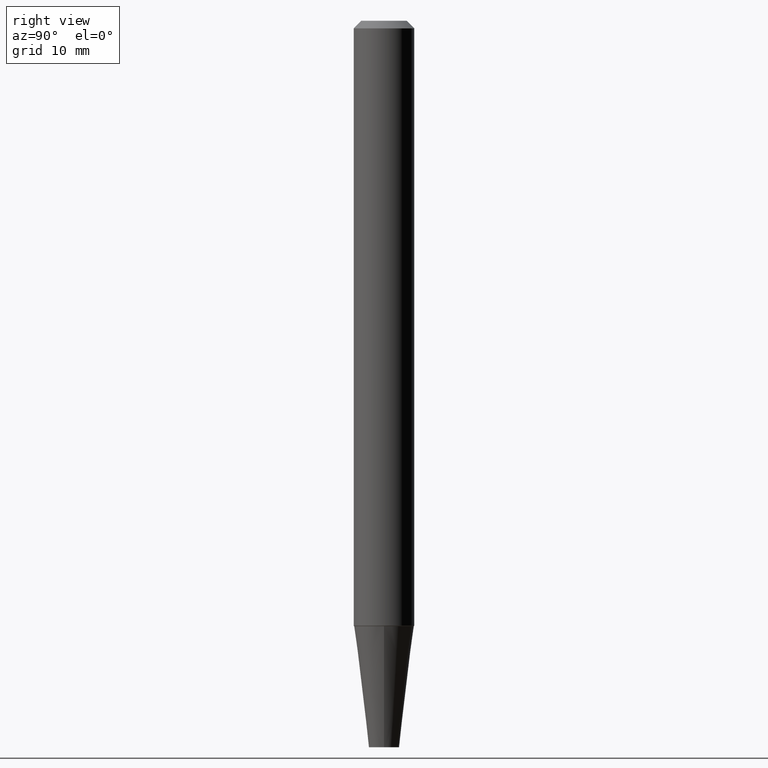
[diagram: clean part render]
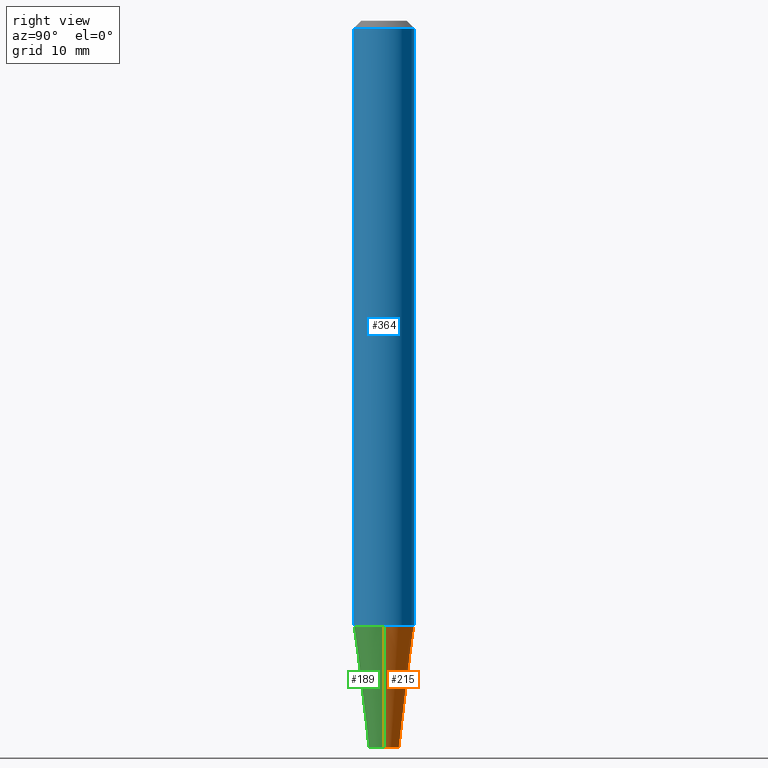
[diagram: same view with three faces highlighted in distinct colors, each labeled with its STEP entity id]
A machine part, right view with three faces highlighted in distinct colors.
Their STEP definitions:

[orange] entity #215 — the highlighted conical surface has half-angle 7 deg.
#7 = ORIENTED_EDGE ( 'NONE', *, *, #116, .F. ) ;
#18 = ORIENTED_EDGE ( 'NONE', *, *, #213, .T. ) ;
#28 = ORIENTED_EDGE ( 'NONE', *, *, #350, .F. ) ;
#53 = DIRECTION ( 'NONE',  ( 1.000000000000000000, -6.982962677686273810E-15, 0.000000000000000000 ) ) ;
#55 = VERTEX_POINT ( 'NONE', #270 ) ;
#75 = CARTESIAN_POINT ( 'NONE',  ( 6.113672015462842613E-29, -8.728703347107864943E-15, -2.500000000000000000 ) ) ;
#76 = LINE ( 'NONE', #191, #179 ) ;
#78 = CARTESIAN_POINT ( 'NONE',  ( 7.336406418555409790E-29, -1.047444401652943635E-14, -3.000000000000000444 ) ) ;
#85 = DIRECTION ( 'NONE',  ( -2.445468806185136597E-29, 3.491481338843145583E-15, 1.000000000000000000 ) ) ;
#88 = AXIS2_PLACEMENT_3D ( 'NONE', #75, #136, #402 ) ;
#116 = EDGE_CURVE ( 'NONE', #55, #322, #139, .T. ) ;
#136 = DIRECTION ( 'NONE',  ( -2.445468806185136597E-29, 3.491481338843145583E-15, 1.000000000000000000 ) ) ;
#139 = CIRCLE ( 'NONE', #88, 0.1238922804514488302 ) ;
#146 = FACE_OUTER_BOUND ( 'NONE', #263, .T. ) ;
#148 = LINE ( 'NONE', #207, #252 ) ;
#152 = AXIS2_PLACEMENT_3D ( 'NONE', #329, #195, #53 ) ;
#159 = DIRECTION ( 'NONE',  ( 1.000000000000000000, -6.982962677686273810E-15, 0.000000000000000000 ) ) ;
#160 = CARTESIAN_POINT ( 'NONE',  ( -0.06250000000000018041, -8.939375277435968342E-15, -3.000000000000000444 ) ) ;
#172 = AXIS2_PLACEMENT_3D ( 'NONE', #78, #85, #159 ) ;
#179 = VECTOR ( 'NONE', #325, 39.37007874015748854 ) ;
#191 = CARTESIAN_POINT ( 'NONE',  ( 0.06250000000000018041, -1.091087918388483118E-14, -3.000000000000000444 ) ) ;
#195 = DIRECTION ( 'NONE',  ( -2.445468806185136597E-29, 3.491481338843145583E-15, 1.000000000000000000 ) ) ;
#207 = CARTESIAN_POINT ( 'NONE',  ( -0.06250000000000018041, -1.003035480667937216E-14, -3.000000000000000444 ) ) ;
#213 = EDGE_CURVE ( 'NONE', #223, #354, #356, .T. ) ;
#215 = ADVANCED_FACE ( 'NONE', ( #146 ), #394, .T. ) ;
#223 = VERTEX_POINT ( 'NONE', #304 ) ;
#252 = VECTOR ( 'NONE', #343, 39.37007874015748854 ) ;
#263 = EDGE_LOOP ( 'NONE', ( #18, #315, #7, #28 ) ) ;
#270 = CARTESIAN_POINT ( 'NONE',  ( 0.1238922804514488302, -9.593838517553770713E-15, -2.500000000000000000 ) ) ;
#284 = EDGE_CURVE ( 'NONE', #354, #322, #148, .T. ) ;
#290 = CARTESIAN_POINT ( 'NONE',  ( -0.1238922804514488302, -7.848395748192562947E-15, -2.500000000000000000 ) ) ;
#304 = CARTESIAN_POINT ( 'NONE',  ( 0.06250000000000018041, -1.091087918388483118E-14, -3.000000000000000444 ) ) ;
#315 = ORIENTED_EDGE ( 'NONE', *, *, #284, .T. ) ;
#322 = VERTEX_POINT ( 'NONE', #290 ) ;
#325 = DIRECTION ( 'NONE',  ( 0.1218693434051403013, 2.614447289844031754E-15, 0.9925461516413229823 ) ) ;
#329 = CARTESIAN_POINT ( 'NONE',  ( 7.336406418555409790E-29, -1.047444401652943635E-14, -3.000000000000000444 ) ) ;
#343 = DIRECTION ( 'NONE',  ( -0.1218693434051403013, 4.331390133080013075E-15, 0.9925461516413229823 ) ) ;
#350 = EDGE_CURVE ( 'NONE', #223, #55, #76, .T. ) ;
#354 = VERTEX_POINT ( 'NONE', #160 ) ;
#356 = CIRCLE ( 'NONE', #172, 0.06250000000000018041 ) ;
#394 = CONICAL_SURFACE ( 'NONE', #152, 0.06250000000000018041, 0.1221730476395958415 ) ;
#402 = DIRECTION ( 'NONE',  ( 1.000000000000000000, -6.982962677686261977E-15, 0.000000000000000000 ) ) ;

[blue] entity #364 — the highlighted cylindrical surface (edge-blend (fillet) strip) has radius 3.175 mm, axis along (-0, 0, 1).
#21 = DIRECTION ( 'NONE',  ( -2.634027352174644094E-29, 3.221454768900221643E-15, 1.000000000000000000 ) ) ;
#22 = FACE_OUTER_BOUND ( 'NONE', #221, .T. ) ;
#27 = CYLINDRICAL_SURFACE ( 'NONE', #100, 0.1250000000000001388 ) ;
#36 = VECTOR ( 'NONE', #409, 39.37007874015748143 ) ;
#50 = CARTESIAN_POINT ( 'NONE',  ( -8.575622497214472631E-16, -0.1250000000000010825, -0.03124999999999965306 ) ) ;
#60 = CARTESIAN_POINT ( 'NONE',  ( 8.728703347107841277E-16, 0.1249999999999999167, -0.03125000000000045797 ) ) ;
#81 = ORIENTED_EDGE ( 'NONE', *, *, #275, .T. ) ;
#83 = DIRECTION ( 'NONE',  ( -2.634027352174644094E-29, 3.221454768900221643E-15, 1.000000000000000000 ) ) ;
#100 = AXIS2_PLACEMENT_3D ( 'NONE', #335, #83, #114 ) ;
#110 = CIRCLE ( 'NONE', #404, 0.1249999999999997918 ) ;
#114 = DIRECTION ( 'NONE',  ( -6.982962677686266711E-15, -1.000000000000000000, 3.221454768900222038E-15 ) ) ;
#130 = VERTEX_POINT ( 'NONE', #50 ) ;
#141 = ORIENTED_EDGE ( 'NONE', *, *, #323, .T. ) ;
#143 = EDGE_CURVE ( 'NONE', #297, #130, #237, .T. ) ;
#147 = DIRECTION ( 'NONE',  ( -2.634027352174644094E-29, 3.221454768900221643E-15, 1.000000000000000000 ) ) ;
#169 = CARTESIAN_POINT ( 'NONE',  ( -2.574848880912829663E-30, -5.872808853995789416E-16, -0.03125000000000005551 ) ) ;
#187 = ORIENTED_EDGE ( 'NONE', *, *, #143, .F. ) ;
#214 = CARTESIAN_POINT ( 'NONE',  ( 8.881784197001227671E-16, 0.1249999999999996808, -3.835579915796902468E-16 ) ) ;
#221 = EDGE_LOOP ( 'NONE', ( #141, #81, #303, #187 ) ) ;
#226 = DIRECTION ( 'NONE',  ( -2.634027352174644094E-29, 3.221454768900221643E-15, 1.000000000000000000 ) ) ;
#230 = CARTESIAN_POINT ( 'NONE',  ( -8.728703347107876776E-16, -0.1250000000000006384, 4.218057006453661994E-16 ) ) ;
#237 = LINE ( 'NONE', #230, #341 ) ;
#272 = CARTESIAN_POINT ( 'NONE',  ( 8.881784197001548146E-16, 0.1249999999999912570, -2.497624487762148959 ) ) ;
#275 = EDGE_CURVE ( 'NONE', #291, #288, #276, .T. ) ;
#276 = LINE ( 'NONE', #214, #36 ) ;
#285 = AXIS2_PLACEMENT_3D ( 'NONE', #169, #147, #367 ) ;
#288 = VERTEX_POINT ( 'NONE', #60 ) ;
#291 = VERTEX_POINT ( 'NONE', #272 ) ;
#297 = VERTEX_POINT ( 'NONE', #411 ) ;
#303 = ORIENTED_EDGE ( 'NONE', *, *, #415, .F. ) ;
#323 = EDGE_CURVE ( 'NONE', #297, #291, #110, .T. ) ;
#327 = CARTESIAN_POINT ( 'NONE',  ( 6.239012973379943881E-29, -8.532594740894794677E-15, -2.497624487762148515 ) ) ;
#335 = CARTESIAN_POINT ( 'NONE',  ( -3.397982428467408395E-30, -4.866104238714468673E-16, 1.912385453283800096E-17 ) ) ;
#341 = VECTOR ( 'NONE', #21, 39.37007874015748143 ) ;
#358 = DIRECTION ( 'NONE',  ( -6.982962677686265922E-15, -1.000000000000000000, 4.370956789862828249E-15 ) ) ;
#363 = CIRCLE ( 'NONE', #285, 0.1250000000000004996 ) ;
#364 = ADVANCED_FACE ( 'NONE', ( #22 ), #27, .T. ) ;
#367 = DIRECTION ( 'NONE',  ( -6.982962677686266711E-15, -1.000000000000000000, 3.209921392555496413E-15 ) ) ;
#404 = AXIS2_PLACEMENT_3D ( 'NONE', #327, #226, #358 ) ;
#409 = DIRECTION ( 'NONE',  ( -2.634027352174644094E-29, 3.221454768900221643E-15, 1.000000000000000000 ) ) ;
#411 = CARTESIAN_POINT ( 'NONE',  ( -8.728703347107194411E-16, -0.1250000000000083267, -2.497624487762148071 ) ) ;
#415 = EDGE_CURVE ( 'NONE', #130, #288, #363, .T. ) ;

[green] entity #189 — the highlighted conical surface has half-angle 7 deg.
#54 = DIRECTION ( 'NONE',  ( 1.000000000000000000, -6.982962677686273810E-15, 0.000000000000000000 ) ) ;
#55 = VERTEX_POINT ( 'NONE', #270 ) ;
#76 = LINE ( 'NONE', #191, #179 ) ;
#87 = CIRCLE ( 'NONE', #182, 0.06250000000000018041 ) ;
#103 = ORIENTED_EDGE ( 'NONE', *, *, #359, .F. ) ;
#105 = CARTESIAN_POINT ( 'NONE',  ( 6.113672015462842613E-29, -8.728703347107864943E-15, -2.500000000000000000 ) ) ;
#106 = FACE_OUTER_BOUND ( 'NONE', #336, .T. ) ;
#148 = LINE ( 'NONE', #207, #252 ) ;
#160 = CARTESIAN_POINT ( 'NONE',  ( -0.06250000000000018041, -8.939375277435968342E-15, -3.000000000000000444 ) ) ;
#179 = VECTOR ( 'NONE', #325, 39.37007874015748854 ) ;
#180 = AXIS2_PLACEMENT_3D ( 'NONE', #264, #259, #398 ) ;
#182 = AXIS2_PLACEMENT_3D ( 'NONE', #332, #370, #54 ) ;
#188 = ORIENTED_EDGE ( 'NONE', *, *, #391, .T. ) ;
#189 = ADVANCED_FACE ( 'NONE', ( #106 ), #368, .T. ) ;
#191 = CARTESIAN_POINT ( 'NONE',  ( 0.06250000000000018041, -1.091087918388483118E-14, -3.000000000000000444 ) ) ;
#198 = ORIENTED_EDGE ( 'NONE', *, *, #350, .T. ) ;
#207 = CARTESIAN_POINT ( 'NONE',  ( -0.06250000000000018041, -1.003035480667937216E-14, -3.000000000000000444 ) ) ;
#223 = VERTEX_POINT ( 'NONE', #304 ) ;
#229 = ORIENTED_EDGE ( 'NONE', *, *, #284, .F. ) ;
#235 = DIRECTION ( 'NONE',  ( 1.000000000000000000, -6.982962677686261977E-15, 0.000000000000000000 ) ) ;
#252 = VECTOR ( 'NONE', #343, 39.37007874015748854 ) ;
#259 = DIRECTION ( 'NONE',  ( -2.445468806185136597E-29, 3.491481338843145583E-15, 1.000000000000000000 ) ) ;
#264 = CARTESIAN_POINT ( 'NONE',  ( 7.336406418555409790E-29, -1.047444401652943635E-14, -3.000000000000000444 ) ) ;
#270 = CARTESIAN_POINT ( 'NONE',  ( 0.1238922804514488302, -9.593838517553770713E-15, -2.500000000000000000 ) ) ;
#284 = EDGE_CURVE ( 'NONE', #354, #322, #148, .T. ) ;
#290 = CARTESIAN_POINT ( 'NONE',  ( -0.1238922804514488302, -7.848395748192562947E-15, -2.500000000000000000 ) ) ;
#304 = CARTESIAN_POINT ( 'NONE',  ( 0.06250000000000018041, -1.091087918388483118E-14, -3.000000000000000444 ) ) ;
#322 = VERTEX_POINT ( 'NONE', #290 ) ;
#325 = DIRECTION ( 'NONE',  ( 0.1218693434051403013, 2.614447289844031754E-15, 0.9925461516413229823 ) ) ;
#332 = CARTESIAN_POINT ( 'NONE',  ( 7.336406418555409790E-29, -1.047444401652943635E-14, -3.000000000000000444 ) ) ;
#336 = EDGE_LOOP ( 'NONE', ( #229, #188, #198, #103 ) ) ;
#343 = DIRECTION ( 'NONE',  ( -0.1218693434051403013, 4.331390133080013075E-15, 0.9925461516413229823 ) ) ;
#350 = EDGE_CURVE ( 'NONE', #223, #55, #76, .T. ) ;
#354 = VERTEX_POINT ( 'NONE', #160 ) ;
#359 = EDGE_CURVE ( 'NONE', #322, #55, #400, .T. ) ;
#368 = CONICAL_SURFACE ( 'NONE', #180, 0.06250000000000018041, 0.1221730476395958415 ) ;
#370 = DIRECTION ( 'NONE',  ( -2.445468806185136597E-29, 3.491481338843145583E-15, 1.000000000000000000 ) ) ;
#376 = AXIS2_PLACEMENT_3D ( 'NONE', #105, #399, #235 ) ;
#391 = EDGE_CURVE ( 'NONE', #354, #223, #87, .T. ) ;
#398 = DIRECTION ( 'NONE',  ( 1.000000000000000000, -6.982962677686273810E-15, 0.000000000000000000 ) ) ;
#399 = DIRECTION ( 'NONE',  ( -2.445468806185136597E-29, 3.491481338843145583E-15, 1.000000000000000000 ) ) ;
#400 = CIRCLE ( 'NONE', #376, 0.1238922804514488302 ) ;